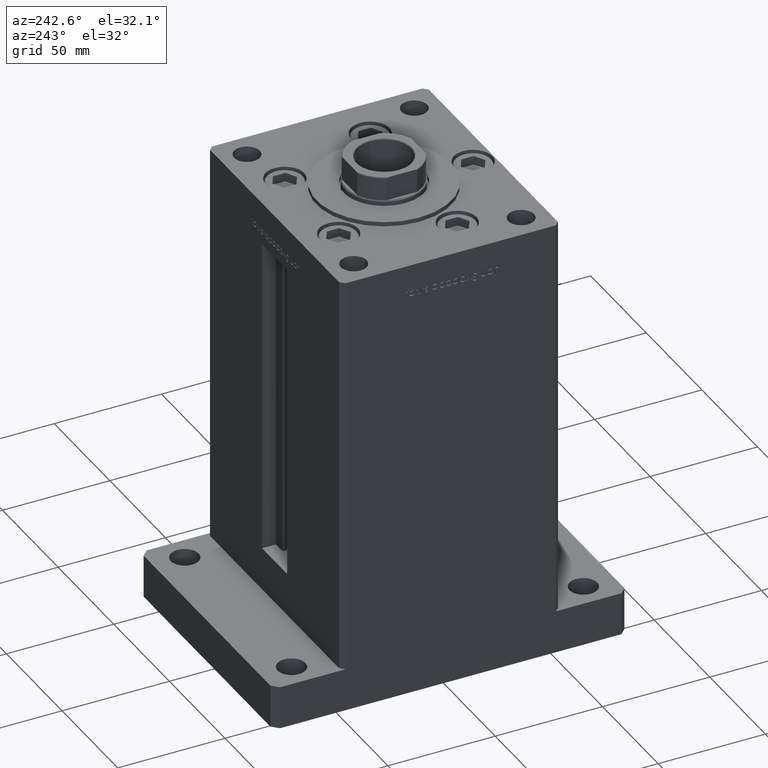
[diagram: clean part render]
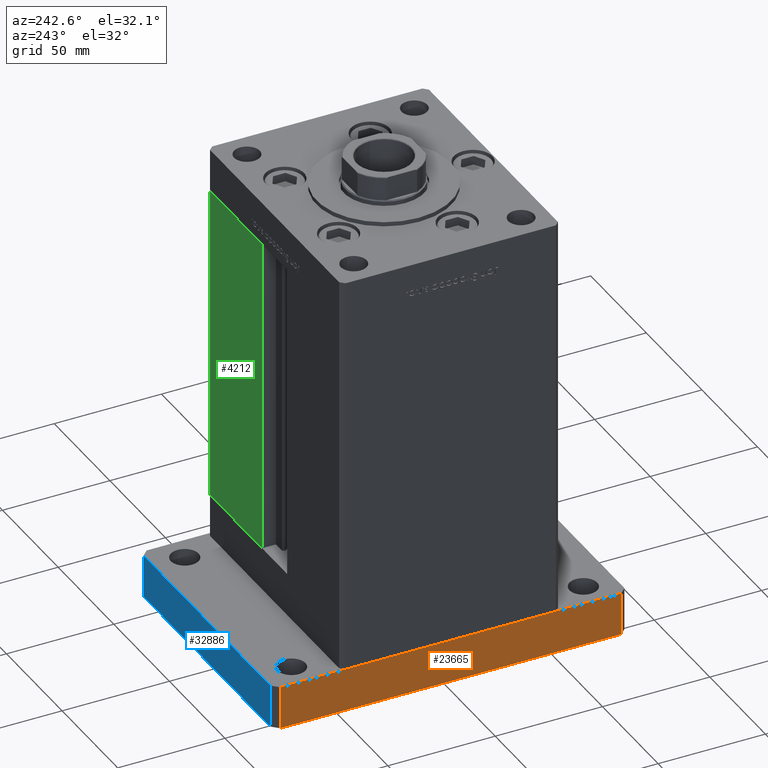
[diagram: same view with three faces highlighted in distinct colors, each labeled with its STEP entity id]
A machine part, auxiliary view with three faces highlighted in distinct colors.
Their STEP definitions:

[orange] entity #23665 — the highlighted planar face has unit normal (1, 0, 0).
#950 = DIRECTION ( 'NONE',  ( 2.618450529776312260E-16, -1.000000000000000000, 0.000000000000000000 ) ) ;
#1535 = ORIENTED_EDGE ( 'NONE', *, *, #28482, .F. ) ;
#1630 = DIRECTION ( 'NONE',  ( -2.618450529776312260E-16, 1.000000000000000000, 0.000000000000000000 ) ) ;
#2342 = AXIS2_PLACEMENT_3D ( 'NONE', #13821, #34692, #1630 ) ;
#2648 = VECTOR ( 'NONE', #950, 1000.000000000000000 ) ;
#2922 = DIRECTION ( 'NONE',  ( -0.000000000000000000, -0.000000000000000000, -1.000000000000000000 ) ) ;
#7349 = CARTESIAN_POINT ( 'NONE',  ( -59.99999999999998579, -79.50000000000002842, 20.00000000000000000 ) ) ;
#13552 = FACE_OUTER_BOUND ( 'NONE', #15188, .T. ) ;
#13821 = CARTESIAN_POINT ( 'NONE',  ( -60.00000000000002842, 79.50000000000001421, 20.00000000000000000 ) ) ;
#14058 = ORIENTED_EDGE ( 'NONE', *, *, #34489, .T. ) ;
#14295 = VERTEX_POINT ( 'NONE', #30150 ) ;
#15188 = EDGE_LOOP ( 'NONE', ( #14058, #28805, #1535, #38626 ) ) ;
#19513 = VERTEX_POINT ( 'NONE', #20763 ) ;
#20763 = CARTESIAN_POINT ( 'NONE',  ( -59.99999999999998579, -79.50000000000002842, 0.000000000000000000 ) ) ;
#22817 = VERTEX_POINT ( 'NONE', #7349 ) ;
#23665 = ADVANCED_FACE ( 'NONE', ( #13552 ), #37939, .F. ) ;
#23797 = CARTESIAN_POINT ( 'NONE',  ( -59.99999999999998579, -79.50000000000002842, 20.00000000000000000 ) ) ;
#25924 = LINE ( 'NONE', #37323, #41455 ) ;
#28430 = VERTEX_POINT ( 'NONE', #49557 ) ;
#28482 = EDGE_CURVE ( 'NONE', #14295, #22817, #25924, .T. ) ;
#28805 = ORIENTED_EDGE ( 'NONE', *, *, #46263, .F. ) ;
#30150 = CARTESIAN_POINT ( 'NONE',  ( -60.00000000000002842, 79.50000000000001421, 20.00000000000000000 ) ) ;
#30375 = VECTOR ( 'NONE', #30714, 1000.000000000000000 ) ;
#30463 = LINE ( 'NONE', #42405, #2648 ) ;
#30714 = DIRECTION ( 'NONE',  ( -0.000000000000000000, -0.000000000000000000, -1.000000000000000000 ) ) ;
#32995 = LINE ( 'NONE', #23797, #40126 ) ;
#34489 = EDGE_CURVE ( 'NONE', #28430, #19513, #30463, .T. ) ;
#34692 = DIRECTION ( 'NONE',  ( 1.000000000000000000, 2.618450529776312260E-16, -0.000000000000000000 ) ) ;
#37323 = CARTESIAN_POINT ( 'NONE',  ( -60.00000000000002842, 79.50000000000001421, 20.00000000000000000 ) ) ;
#37939 = PLANE ( 'NONE',  #2342 ) ;
#38301 = CARTESIAN_POINT ( 'NONE',  ( -60.00000000000002842, 79.50000000000001421, 20.00000000000000000 ) ) ;
#38626 = ORIENTED_EDGE ( 'NONE', *, *, #39673, .T. ) ;
#39673 = EDGE_CURVE ( 'NONE', #14295, #28430, #47280, .T. ) ;
#40126 = VECTOR ( 'NONE', #2922, 1000.000000000000000 ) ;
#41455 = VECTOR ( 'NONE', #51426, 1000.000000000000000 ) ;
#42405 = CARTESIAN_POINT ( 'NONE',  ( -60.00000000000002842, 79.50000000000001421, 0.000000000000000000 ) ) ;
#46263 = EDGE_CURVE ( 'NONE', #22817, #19513, #32995, .T. ) ;
#47280 = LINE ( 'NONE', #38301, #30375 ) ;
#49557 = CARTESIAN_POINT ( 'NONE',  ( -60.00000000000002842, 79.50000000000001421, 0.000000000000000000 ) ) ;
#51426 = DIRECTION ( 'NONE',  ( 2.618450529776312260E-16, -1.000000000000000000, 0.000000000000000000 ) ) ;

[blue] entity #32886 — the highlighted planar face has unit normal (0, -1, 0).
#207 = CARTESIAN_POINT ( 'NONE',  ( 57.00000000000002132, 82.50000000000002842, 20.00000000000000000 ) ) ;
#4173 = DIRECTION ( 'NONE',  ( -1.000000000000000000, -2.434699615406043739E-16, 0.000000000000000000 ) ) ;
#4206 = DIRECTION ( 'NONE',  ( -1.000000000000000000, -2.434699615406043739E-16, 0.000000000000000000 ) ) ;
#4333 = DIRECTION ( 'NONE',  ( 1.000000000000000000, 2.434699615406043739E-16, 0.000000000000000000 ) ) ;
#7713 = EDGE_CURVE ( 'NONE', #28369, #25117, #53020, .T. ) ;
#8126 = FACE_OUTER_BOUND ( 'NONE', #33786, .T. ) ;
#8402 = DIRECTION ( 'NONE',  ( 2.434699615406043739E-16, -1.000000000000000000, 0.000000000000000000 ) ) ;
#10217 = CARTESIAN_POINT ( 'NONE',  ( 57.00000000000002132, 82.50000000000002842, 20.00000000000000000 ) ) ;
#10559 = EDGE_CURVE ( 'NONE', #28369, #16578, #42725, .T. ) ;
#10707 = VECTOR ( 'NONE', #34602, 1000.000000000000000 ) ;
#12030 = LINE ( 'NONE', #24496, #35163 ) ;
#16189 = ORIENTED_EDGE ( 'NONE', *, *, #7713, .F. ) ;
#16578 = VERTEX_POINT ( 'NONE', #35671 ) ;
#16709 = ORIENTED_EDGE ( 'NONE', *, *, #17720, .T. ) ;
#17720 = EDGE_CURVE ( 'NONE', #16578, #53610, #12030, .T. ) ;
#24460 = EDGE_CURVE ( 'NONE', #25117, #53610, #50853, .T. ) ;
#24496 = CARTESIAN_POINT ( 'NONE',  ( 57.00000000000002132, 82.50000000000002842, 0.000000000000000000 ) ) ;
#25117 = VERTEX_POINT ( 'NONE', #35354 ) ;
#25708 = VECTOR ( 'NONE', #30217, 1000.000000000000000 ) ;
#28369 = VERTEX_POINT ( 'NONE', #207 ) ;
#30217 = DIRECTION ( 'NONE',  ( -0.000000000000000000, -0.000000000000000000, -1.000000000000000000 ) ) ;
#30843 = CARTESIAN_POINT ( 'NONE',  ( -57.00000000000003553, 82.50000000000000000, 0.000000000000000000 ) ) ;
#32886 = ADVANCED_FACE ( 'NONE', ( #8126 ), #45544, .F. ) ;
#33786 = EDGE_LOOP ( 'NONE', ( #16709, #44661, #16189, #46528 ) ) ;
#34602 = DIRECTION ( 'NONE',  ( -0.000000000000000000, -0.000000000000000000, -1.000000000000000000 ) ) ;
#35163 = VECTOR ( 'NONE', #4173, 1000.000000000000000 ) ;
#35354 = CARTESIAN_POINT ( 'NONE',  ( -57.00000000000003553, 82.50000000000000000, 20.00000000000000000 ) ) ;
#35671 = CARTESIAN_POINT ( 'NONE',  ( 57.00000000000002132, 82.50000000000002842, 0.000000000000000000 ) ) ;
#41185 = CARTESIAN_POINT ( 'NONE',  ( 57.00000000000002132, 82.50000000000002842, 20.00000000000000000 ) ) ;
#42685 = CARTESIAN_POINT ( 'NONE',  ( -57.00000000000003553, 82.50000000000000000, 20.00000000000000000 ) ) ;
#42725 = LINE ( 'NONE', #10217, #10707 ) ;
#44661 = ORIENTED_EDGE ( 'NONE', *, *, #24460, .F. ) ;
#45544 = PLANE ( 'NONE',  #50266 ) ;
#46528 = ORIENTED_EDGE ( 'NONE', *, *, #10559, .T. ) ;
#50266 = AXIS2_PLACEMENT_3D ( 'NONE', #41185, #8402, #4333 ) ;
#50788 = VECTOR ( 'NONE', #4206, 1000.000000000000000 ) ;
#50853 = LINE ( 'NONE', #42685, #25708 ) ;
#52759 = CARTESIAN_POINT ( 'NONE',  ( 57.00000000000002132, 82.50000000000002842, 20.00000000000000000 ) ) ;
#53020 = LINE ( 'NONE', #52759, #50788 ) ;
#53610 = VERTEX_POINT ( 'NONE', #30843 ) ;

[green] entity #4212 — the highlighted planar face has unit normal (-0, -1, 0).
#2393 = VERTEX_POINT ( 'NONE', #43952 ) ;
#2794 = VECTOR ( 'NONE', #23840, 1000.000000000000000 ) ;
#2809 = CARTESIAN_POINT ( 'NONE',  ( 11.24999999999999467, 51.00000000000000000, 148.5000000000000000 ) ) ;
#2919 = VECTOR ( 'NONE', #6870, 1000.000000000000000 ) ;
#4212 = ADVANCED_FACE ( 'NONE', ( #51652 ), #26686, .F. ) ;
#6065 = EDGE_CURVE ( 'NONE', #37049, #35393, #12792, .T. ) ;
#6870 = DIRECTION ( 'NONE',  ( -0.000000000000000000, -0.000000000000000000, 1.000000000000000000 ) ) ;
#9284 = ORIENTED_EDGE ( 'NONE', *, *, #38178, .T. ) ;
#10074 = VECTOR ( 'NONE', #33387, 1000.000000000000000 ) ;
#12792 = LINE ( 'NONE', #28494, #10074 ) ;
#13727 = LINE ( 'NONE', #18056, #14101 ) ;
#14101 = VECTOR ( 'NONE', #34054, 1000.000000000000000 ) ;
#15238 = ORIENTED_EDGE ( 'NONE', *, *, #46007, .T. ) ;
#17621 = CARTESIAN_POINT ( 'NONE',  ( 57.99999999999999289, 51.00000000000000711, 0.000000000000000000 ) ) ;
#18056 = CARTESIAN_POINT ( 'NONE',  ( -11.25000000000000178, 51.00000000000000000, 0.000000000000000000 ) ) ;
#18960 = VERTEX_POINT ( 'NONE', #17621 ) ;
#19585 = CARTESIAN_POINT ( 'NONE',  ( 11.25000000000000178, 51.00000000000000000, 0.000000000000000000 ) ) ;
#23402 = LINE ( 'NONE', #19585, #2919 ) ;
#23840 = DIRECTION ( 'NONE',  ( -0.000000000000000000, -0.000000000000000000, -1.000000000000000000 ) ) ;
#24070 = ORIENTED_EDGE ( 'NONE', *, *, #43249, .T. ) ;
#26686 = PLANE ( 'NONE',  #30911 ) ;
#28494 = CARTESIAN_POINT ( 'NONE',  ( -11.25000000000000178, 51.00000000000000000, 148.5000000000000000 ) ) ;
#30911 = AXIS2_PLACEMENT_3D ( 'NONE', #51921, #38333, #43230 ) ;
#33387 = DIRECTION ( 'NONE',  ( 1.000000000000000000, 0.000000000000000000, 0.000000000000000000 ) ) ;
#34054 = DIRECTION ( 'NONE',  ( -1.000000000000000000, 1.484255380514915423E-16, 0.000000000000000000 ) ) ;
#35393 = VERTEX_POINT ( 'NONE', #36061 ) ;
#36061 = CARTESIAN_POINT ( 'NONE',  ( 57.99999999999999289, 51.00000000000000711, 148.5000000000000000 ) ) ;
#37049 = VERTEX_POINT ( 'NONE', #2809 ) ;
#38178 = EDGE_CURVE ( 'NONE', #35393, #18960, #39831, .T. ) ;
#38333 = DIRECTION ( 'NONE',  ( -1.484255380514915423E-16, -1.000000000000000000, 0.000000000000000000 ) ) ;
#39831 = LINE ( 'NONE', #52604, #2794 ) ;
#40176 = ORIENTED_EDGE ( 'NONE', *, *, #6065, .T. ) ;
#43230 = DIRECTION ( 'NONE',  ( 1.000000000000000000, -1.484255380514915423E-16, 0.000000000000000000 ) ) ;
#43249 = EDGE_CURVE ( 'NONE', #18960, #2393, #13727, .T. ) ;
#43952 = CARTESIAN_POINT ( 'NONE',  ( 11.25000000000000178, 51.00000000000000000, 0.000000000000000000 ) ) ;
#46007 = EDGE_CURVE ( 'NONE', #2393, #37049, #23402, .T. ) ;
#49641 = EDGE_LOOP ( 'NONE', ( #24070, #15238, #40176, #9284 ) ) ;
#51652 = FACE_OUTER_BOUND ( 'NONE', #49641, .T. ) ;
#51921 = CARTESIAN_POINT ( 'NONE',  ( -11.25000000000000178, 51.00000000000000000, 148.5000000000000000 ) ) ;
#52604 = CARTESIAN_POINT ( 'NONE',  ( 57.99999999999999289, 51.00000000000000711, 148.5000000000000000 ) ) ;